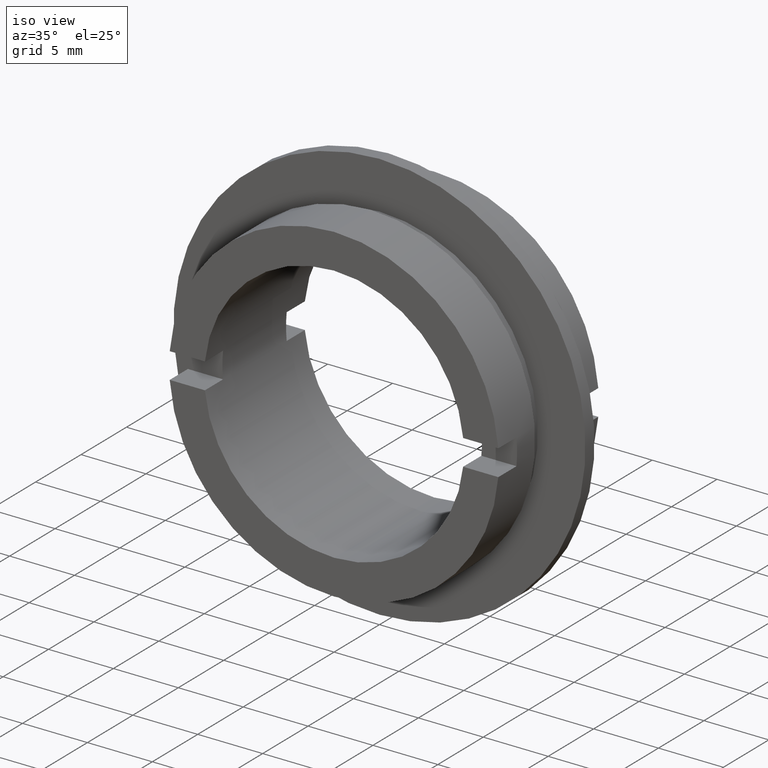
[diagram: clean part render]
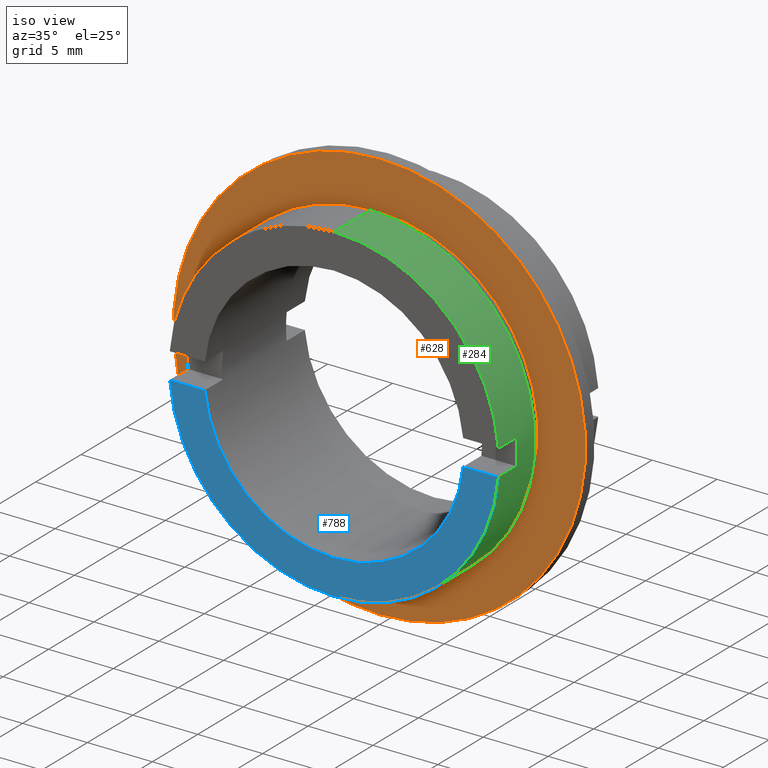
[diagram: same view with three faces highlighted in distinct colors, each labeled with its STEP entity id]
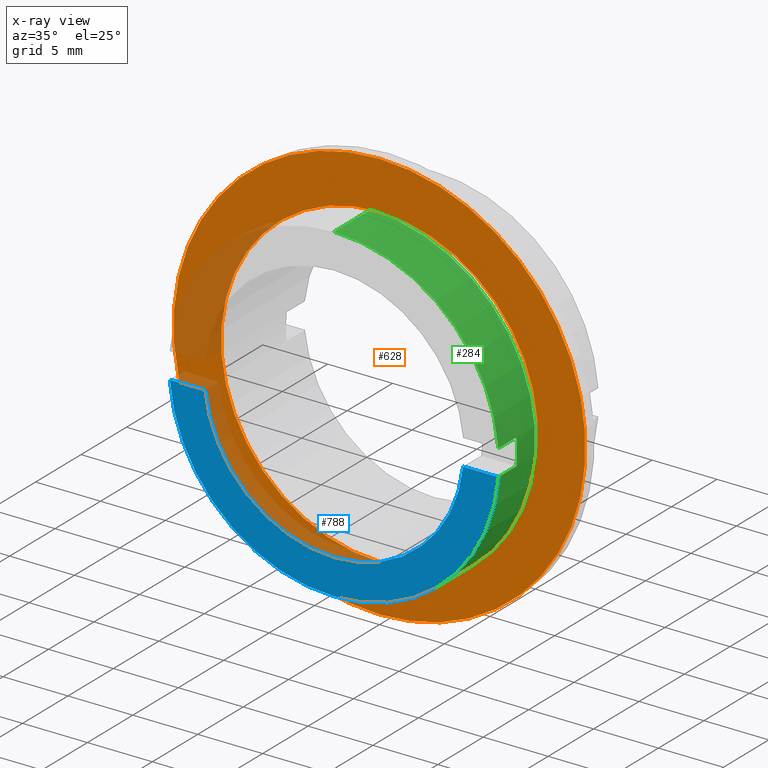
[diagram: x-ray of the same camera — body ghosted, the three highlighted faces saturated]
A machine part, iso view with three faces highlighted in distinct colors.
The next image is the same camera in x-ray (body ghosted, the three faces saturated) — at least one of them is partly hidden behind the body in this view.
Their STEP definitions:

[orange] entity #628 — the highlighted planar face has unit normal (0, -1, 0).
#5 = CARTESIAN_POINT ( 'NONE',  ( 0.0000000000000000000, 5.000000000000000900, 15.87499999999999600 ) ) ;
#58 = DIRECTION ( 'NONE',  ( 0.0000000000000000000, -1.000000000000000000, 0.0000000000000000000 ) ) ;
#137 = DIRECTION ( 'NONE',  ( -0.0000000000000000000, 1.000000000000000000, -0.0000000000000000000 ) ) ;
#149 = CARTESIAN_POINT ( 'NONE',  ( 0.0000000000000000000, 5.000000000000000900, 0.0000000000000000000 ) ) ;
#230 = ORIENTED_EDGE ( 'NONE', *, *, #746, .F. ) ;
#244 = VERTEX_POINT ( 'NONE', #972 ) ;
#314 = AXIS2_PLACEMENT_3D ( 'NONE', #149, #1060, #511 ) ;
#318 = EDGE_CURVE ( 'NONE', #524, #913, #880, .T. ) ;
#320 = DIRECTION ( 'NONE',  ( 0.0000000000000000000, 0.0000000000000000000, 1.000000000000000000 ) ) ;
#333 = CARTESIAN_POINT ( 'NONE',  ( 0.0000000000000000000, 5.000000000000000900, 0.0000000000000000000 ) ) ;
#336 = CARTESIAN_POINT ( 'NONE',  ( 0.0000000000000000000, 5.000000000000000900, 12.19999999999999800 ) ) ;
#353 = DIRECTION ( 'NONE',  ( -0.0000000000000000000, 1.000000000000000000, -0.0000000000000000000 ) ) ;
#366 = FACE_BOUND ( 'NONE', #993, .T. ) ;
#389 = AXIS2_PLACEMENT_3D ( 'NONE', #333, #501, #417 ) ;
#394 = AXIS2_PLACEMENT_3D ( 'NONE', #405, #137, #320 ) ;
#405 = CARTESIAN_POINT ( 'NONE',  ( 0.0000000000000000000, 5.000000000000000900, 0.0000000000000000000 ) ) ;
#417 = DIRECTION ( 'NONE',  ( 0.0000000000000000000, 0.0000000000000000000, 1.000000000000000000 ) ) ;
#464 = DIRECTION ( 'NONE',  ( 0.0000000000000000000, -0.0000000000000000000, -1.000000000000000000 ) ) ;
#498 = CARTESIAN_POINT ( 'NONE',  ( -15.87499999999999600, 5.000000000000000000, 0.0000000000000000000 ) ) ;
#501 = DIRECTION ( 'NONE',  ( -0.0000000000000000000, 1.000000000000000000, -0.0000000000000000000 ) ) ;
#511 = DIRECTION ( 'NONE',  ( 0.0000000000000000000, 0.0000000000000000000, 1.000000000000000000 ) ) ;
#524 = VERTEX_POINT ( 'NONE', #336 ) ;
#532 = DIRECTION ( 'NONE',  ( 0.0000000000000000000, 0.0000000000000000000, 1.000000000000000000 ) ) ;
#567 = EDGE_CURVE ( 'NONE', #913, #524, #873, .T. ) ;
#601 = VERTEX_POINT ( 'NONE', #5 ) ;
#628 = ADVANCED_FACE ( 'NONE', ( #366, #892 ), #851, .T. ) ;
#643 = CIRCLE ( 'NONE', #999, 15.87499999999999600 ) ;
#689 = AXIS2_PLACEMENT_3D ( 'NONE', #498, #58, #464 ) ;
#704 = ORIENTED_EDGE ( 'NONE', *, *, #567, .T. ) ;
#731 = ORIENTED_EDGE ( 'NONE', *, *, #1044, .F. ) ;
#746 = EDGE_CURVE ( 'NONE', #601, #244, #643, .T. ) ;
#849 = CARTESIAN_POINT ( 'NONE',  ( 1.494069094959770900E-015, 5.000000000000000900, -12.19999999999999900 ) ) ;
#851 = PLANE ( 'NONE',  #689 ) ;
#873 = CIRCLE ( 'NONE', #314, 12.19999999999999800 ) ;
#880 = CIRCLE ( 'NONE', #394, 12.19999999999999800 ) ;
#892 = FACE_OUTER_BOUND ( 'NONE', #1004, .T. ) ;
#913 = VERTEX_POINT ( 'NONE', #849 ) ;
#972 = CARTESIAN_POINT ( 'NONE',  ( 1.944126793646422800E-015, 5.000000000000000900, -15.87499999999999600 ) ) ;
#993 = EDGE_LOOP ( 'NONE', ( #1087, #704 ) ) ;
#999 = AXIS2_PLACEMENT_3D ( 'NONE', #1124, #353, #532 ) ;
#1001 = CIRCLE ( 'NONE', #389, 15.87499999999999600 ) ;
#1004 = EDGE_LOOP ( 'NONE', ( #230, #731 ) ) ;
#1044 = EDGE_CURVE ( 'NONE', #244, #601, #1001, .T. ) ;
#1060 = DIRECTION ( 'NONE',  ( -0.0000000000000000000, 1.000000000000000000, -0.0000000000000000000 ) ) ;
#1087 = ORIENTED_EDGE ( 'NONE', *, *, #318, .T. ) ;
#1124 = CARTESIAN_POINT ( 'NONE',  ( 0.0000000000000000000, 5.000000000000000900, 0.0000000000000000000 ) ) ;

[blue] entity #788 — the highlighted planar face has unit normal (0, -1, 0).
#29 = VERTEX_POINT ( 'NONE', #819 ) ;
#41 = EDGE_CURVE ( 'NONE', #730, #29, #560, .T. ) ;
#120 = PLANE ( 'NONE',  #223 ) ;
#171 = CARTESIAN_POINT ( 'NONE',  ( -12.69999999999999800, 0.0000000000000000000, -1.000000000000000000 ) ) ;
#183 = CARTESIAN_POINT ( 'NONE',  ( -12.66056870760551300, 0.0000000000000000000, -1.000000000000000000 ) ) ;
#193 = CARTESIAN_POINT ( 'NONE',  ( 0.0000000000000000000, 0.0000000000000000000, 0.0000000000000000000 ) ) ;
#218 = DIRECTION ( 'NONE',  ( 0.0000000000000000000, 0.0000000000000000000, 1.000000000000000000 ) ) ;
#219 = ORIENTED_EDGE ( 'NONE', *, *, #41, .T. ) ;
#223 = AXIS2_PLACEMENT_3D ( 'NONE', #304, #431, #890 ) ;
#239 = FACE_OUTER_BOUND ( 'NONE', #1073, .T. ) ;
#304 = CARTESIAN_POINT ( 'NONE',  ( -12.69999999999999800, 0.0000000000000000000, 0.0000000000000000000 ) ) ;
#306 = VECTOR ( 'NONE', #724, 1000.000000000000000 ) ;
#340 = CARTESIAN_POINT ( 'NONE',  ( 12.66056870760551300, 0.0000000000000000000, -1.000000000000000000 ) ) ;
#344 = VERTEX_POINT ( 'NONE', #660 ) ;
#391 = DIRECTION ( 'NONE',  ( -0.0000000000000000000, 1.000000000000000000, -0.0000000000000000000 ) ) ;
#411 = ORIENTED_EDGE ( 'NONE', *, *, #696, .F. ) ;
#414 = AXIS2_PLACEMENT_3D ( 'NONE', #193, #507, #540 ) ;
#428 = CARTESIAN_POINT ( 'NONE',  ( 1.224646799147352900E-015, 0.0000000000000000000, -9.999999999999996400 ) ) ;
#431 = DIRECTION ( 'NONE',  ( 0.0000000000000000000, -1.000000000000000000, 0.0000000000000000000 ) ) ;
#433 = CARTESIAN_POINT ( 'NONE',  ( 0.0000000000000000000, 0.0000000000000000000, 0.0000000000000000000 ) ) ;
#439 = VERTEX_POINT ( 'NONE', #183 ) ;
#449 = AXIS2_PLACEMENT_3D ( 'NONE', #985, #391, #885 ) ;
#451 = VERTEX_POINT ( 'NONE', #1145 ) ;
#469 = EDGE_CURVE ( 'NONE', #451, #730, #697, .T. ) ;
#489 = CARTESIAN_POINT ( 'NONE',  ( -12.69999999999999800, 0.0000000000000000000, -1.000000000000000000 ) ) ;
#507 = DIRECTION ( 'NONE',  ( -0.0000000000000000000, 1.000000000000000000, -0.0000000000000000000 ) ) ;
#538 = ORIENTED_EDGE ( 'NONE', *, *, #1120, .F. ) ;
#540 = DIRECTION ( 'NONE',  ( 0.0000000000000000000, 0.0000000000000000000, 1.000000000000000000 ) ) ;
#560 = CIRCLE ( 'NONE', #889, 9.999999999999996400 ) ;
#568 = DIRECTION ( 'NONE',  ( -0.0000000000000000000, 1.000000000000000000, -0.0000000000000000000 ) ) ;
#579 = LINE ( 'NONE', #171, #306 ) ;
#586 = EDGE_CURVE ( 'NONE', #344, #439, #863, .T. ) ;
#599 = ORIENTED_EDGE ( 'NONE', *, *, #586, .F. ) ;
#613 = CIRCLE ( 'NONE', #414, 12.69999999999999800 ) ;
#625 = DIRECTION ( 'NONE',  ( 1.000000000000000000, 0.0000000000000000000, 0.0000000000000000000 ) ) ;
#633 = ORIENTED_EDGE ( 'NONE', *, *, #469, .T. ) ;
#657 = VERTEX_POINT ( 'NONE', #340 ) ;
#660 = CARTESIAN_POINT ( 'NONE',  ( 1.555301434917138200E-015, 0.0000000000000000000, -12.69999999999999800 ) ) ;
#696 = EDGE_CURVE ( 'NONE', #657, #344, #613, .T. ) ;
#697 = CIRCLE ( 'NONE', #449, 9.999999999999996400 ) ;
#724 = DIRECTION ( 'NONE',  ( 1.000000000000000000, 0.0000000000000000000, 0.0000000000000000000 ) ) ;
#730 = VERTEX_POINT ( 'NONE', #428 ) ;
#788 = ADVANCED_FACE ( 'NONE', ( #239 ), #120, .T. ) ;
#819 = CARTESIAN_POINT ( 'NONE',  ( -9.949874371066195900, 0.0000000000000000000, -1.000000000000000000 ) ) ;
#863 = CIRCLE ( 'NONE', #905, 12.69999999999999800 ) ;
#885 = DIRECTION ( 'NONE',  ( 0.0000000000000000000, 0.0000000000000000000, 1.000000000000000000 ) ) ;
#889 = AXIS2_PLACEMENT_3D ( 'NONE', #1135, #568, #1097 ) ;
#890 = DIRECTION ( 'NONE',  ( 0.0000000000000000000, -0.0000000000000000000, -1.000000000000000000 ) ) ;
#898 = ORIENTED_EDGE ( 'NONE', *, *, #1013, .F. ) ;
#904 = LINE ( 'NONE', #489, #1046 ) ;
#905 = AXIS2_PLACEMENT_3D ( 'NONE', #433, #1025, #218 ) ;
#985 = CARTESIAN_POINT ( 'NONE',  ( 0.0000000000000000000, 0.0000000000000000000, 0.0000000000000000000 ) ) ;
#1013 = EDGE_CURVE ( 'NONE', #451, #657, #579, .T. ) ;
#1025 = DIRECTION ( 'NONE',  ( -0.0000000000000000000, 1.000000000000000000, -0.0000000000000000000 ) ) ;
#1046 = VECTOR ( 'NONE', #625, 1000.000000000000000 ) ;
#1073 = EDGE_LOOP ( 'NONE', ( #538, #599, #411, #898, #633, #219 ) ) ;
#1097 = DIRECTION ( 'NONE',  ( 0.0000000000000000000, 0.0000000000000000000, 1.000000000000000000 ) ) ;
#1120 = EDGE_CURVE ( 'NONE', #439, #29, #904, .T. ) ;
#1135 = CARTESIAN_POINT ( 'NONE',  ( 0.0000000000000000000, 0.0000000000000000000, 0.0000000000000000000 ) ) ;
#1145 = CARTESIAN_POINT ( 'NONE',  ( 9.949874371066195900, 0.0000000000000000000, -1.000000000000000000 ) ) ;

[green] entity #284 — the highlighted cylindrical surface (partial cylindrical patch) has radius 12.7 mm, axis along (-0, 1, -0).
#9 = LINE ( 'NONE', #62, #747 ) ;
#44 = CARTESIAN_POINT ( 'NONE',  ( 12.66056870760551200, 22.67749945107591400, -0.9999999999999943400 ) ) ;
#62 = CARTESIAN_POINT ( 'NONE',  ( 1.555301434917138200E-015, 22.67749945107591400, -12.69999999999999800 ) ) ;
#66 = EDGE_LOOP ( 'NONE', ( #525, #897, #237, #1117, #440, #125, #425, #750 ) ) ;
#68 = VERTEX_POINT ( 'NONE', #491 ) ;
#125 = ORIENTED_EDGE ( 'NONE', *, *, #806, .F. ) ;
#131 = CARTESIAN_POINT ( 'NONE',  ( 0.0000000000000000000, 22.67749945107591400, 12.69999999999999800 ) ) ;
#135 = AXIS2_PLACEMENT_3D ( 'NONE', #138, #804, #762 ) ;
#138 = CARTESIAN_POINT ( 'NONE',  ( 0.0000000000000000000, 22.67749945107591400, 0.0000000000000000000 ) ) ;
#192 = CIRCLE ( 'NONE', #499, 12.69999999999999800 ) ;
#193 = CARTESIAN_POINT ( 'NONE',  ( 0.0000000000000000000, 0.0000000000000000000, 0.0000000000000000000 ) ) ;
#225 = DIRECTION ( 'NONE',  ( -0.0000000000000000000, 1.000000000000000000, -0.0000000000000000000 ) ) ;
#237 = ORIENTED_EDGE ( 'NONE', *, *, #702, .F. ) ;
#238 = DIRECTION ( 'NONE',  ( 0.0000000000000000000, 0.0000000000000000000, 1.000000000000000000 ) ) ;
#252 = VECTOR ( 'NONE', #1017, 1000.000000000000000 ) ;
#257 = CARTESIAN_POINT ( 'NONE',  ( 12.66056870760551300, 1.999999999999998200, 1.000000000000000200 ) ) ;
#261 = LINE ( 'NONE', #131, #986 ) ;
#265 = CARTESIAN_POINT ( 'NONE',  ( 0.0000000000000000000, 4.000000000000000000, 12.69999999999999800 ) ) ;
#284 = ADVANCED_FACE ( 'NONE', ( #326 ), #396, .T. ) ;
#302 = LINE ( 'NONE', #725, #252 ) ;
#315 = DIRECTION ( 'NONE',  ( 0.0000000000000000000, 0.0000000000000000000, 1.000000000000000000 ) ) ;
#322 = CIRCLE ( 'NONE', #887, 12.69999999999999800 ) ;
#326 = FACE_OUTER_BOUND ( 'NONE', #66, .T. ) ;
#340 = CARTESIAN_POINT ( 'NONE',  ( 12.66056870760551300, 0.0000000000000000000, -1.000000000000000000 ) ) ;
#344 = VERTEX_POINT ( 'NONE', #660 ) ;
#388 = CARTESIAN_POINT ( 'NONE',  ( 1.555301434917138200E-015, 4.000000000000000000, -12.69999999999999800 ) ) ;
#396 = CYLINDRICAL_SURFACE ( 'NONE', #135, 12.69999999999999800 ) ;
#399 = CARTESIAN_POINT ( 'NONE',  ( 12.66056870760551300, 2.000000000000000000, -0.9999999999999995600 ) ) ;
#414 = AXIS2_PLACEMENT_3D ( 'NONE', #193, #507, #540 ) ;
#425 = ORIENTED_EDGE ( 'NONE', *, *, #832, .F. ) ;
#440 = ORIENTED_EDGE ( 'NONE', *, *, #651, .T. ) ;
#478 = VERTEX_POINT ( 'NONE', #388 ) ;
#491 = CARTESIAN_POINT ( 'NONE',  ( 0.0000000000000000000, 0.0000000000000000000, 12.69999999999999800 ) ) ;
#499 = AXIS2_PLACEMENT_3D ( 'NONE', #929, #906, #238 ) ;
#505 = VECTOR ( 'NONE', #225, 1000.000000000000000 ) ;
#507 = DIRECTION ( 'NONE',  ( -0.0000000000000000000, 1.000000000000000000, -0.0000000000000000000 ) ) ;
#525 = ORIENTED_EDGE ( 'NONE', *, *, #696, .T. ) ;
#526 = DIRECTION ( 'NONE',  ( -0.0000000000000000000, -1.000000000000000000, -0.0000000000000000000 ) ) ;
#540 = DIRECTION ( 'NONE',  ( 0.0000000000000000000, 0.0000000000000000000, 1.000000000000000000 ) ) ;
#550 = CIRCLE ( 'NONE', #617, 12.69999999999999800 ) ;
#577 = DIRECTION ( 'NONE',  ( -0.0000000000000000000, 1.000000000000000000, -0.0000000000000000000 ) ) ;
#613 = CIRCLE ( 'NONE', #414, 12.69999999999999800 ) ;
#617 = AXIS2_PLACEMENT_3D ( 'NONE', #869, #577, #315 ) ;
#651 = EDGE_CURVE ( 'NONE', #68, #1116, #550, .T. ) ;
#657 = VERTEX_POINT ( 'NONE', #340 ) ;
#660 = CARTESIAN_POINT ( 'NONE',  ( 1.555301434917138200E-015, 0.0000000000000000000, -12.69999999999999800 ) ) ;
#673 = EDGE_CURVE ( 'NONE', #344, #478, #9, .T. ) ;
#696 = EDGE_CURVE ( 'NONE', #657, #344, #613, .T. ) ;
#702 = EDGE_CURVE ( 'NONE', #1036, #478, #192, .T. ) ;
#722 = EDGE_CURVE ( 'NONE', #68, #1036, #261, .T. ) ;
#725 = CARTESIAN_POINT ( 'NONE',  ( 12.66056870760551300, 22.67749945107591400, 1.000000000000003800 ) ) ;
#747 = VECTOR ( 'NONE', #770, 1000.000000000000000 ) ;
#750 = ORIENTED_EDGE ( 'NONE', *, *, #792, .F. ) ;
#758 = LINE ( 'NONE', #44, #505 ) ;
#762 = DIRECTION ( 'NONE',  ( 0.0000000000000000000, 0.0000000000000000000, 1.000000000000000000 ) ) ;
#770 = DIRECTION ( 'NONE',  ( -0.0000000000000000000, 1.000000000000000000, -0.0000000000000000000 ) ) ;
#792 = EDGE_CURVE ( 'NONE', #657, #797, #758, .T. ) ;
#794 = CARTESIAN_POINT ( 'NONE',  ( 12.66056870760551300, 0.0000000000000000000, 1.000000000000000000 ) ) ;
#797 = VERTEX_POINT ( 'NONE', #399 ) ;
#804 = DIRECTION ( 'NONE',  ( -0.0000000000000000000, 1.000000000000000000, -0.0000000000000000000 ) ) ;
#806 = EDGE_CURVE ( 'NONE', #950, #1116, #302, .T. ) ;
#832 = EDGE_CURVE ( 'NONE', #797, #950, #322, .T. ) ;
#847 = DIRECTION ( 'NONE',  ( -0.0000000000000000000, 1.000000000000000000, -0.0000000000000000000 ) ) ;
#869 = CARTESIAN_POINT ( 'NONE',  ( 0.0000000000000000000, 0.0000000000000000000, 0.0000000000000000000 ) ) ;
#887 = AXIS2_PLACEMENT_3D ( 'NONE', #1032, #526, #1121 ) ;
#897 = ORIENTED_EDGE ( 'NONE', *, *, #673, .T. ) ;
#906 = DIRECTION ( 'NONE',  ( -0.0000000000000000000, 1.000000000000000000, -0.0000000000000000000 ) ) ;
#929 = CARTESIAN_POINT ( 'NONE',  ( 0.0000000000000000000, 4.000000000000000000, 0.0000000000000000000 ) ) ;
#950 = VERTEX_POINT ( 'NONE', #257 ) ;
#986 = VECTOR ( 'NONE', #847, 1000.000000000000000 ) ;
#1017 = DIRECTION ( 'NONE',  ( 0.0000000000000000000, -1.000000000000000000, 0.0000000000000000000 ) ) ;
#1032 = CARTESIAN_POINT ( 'NONE',  ( 0.0000000000000000000, 1.999999999999998200, 0.0000000000000000000 ) ) ;
#1036 = VERTEX_POINT ( 'NONE', #265 ) ;
#1116 = VERTEX_POINT ( 'NONE', #794 ) ;
#1117 = ORIENTED_EDGE ( 'NONE', *, *, #722, .F. ) ;
#1121 = DIRECTION ( 'NONE',  ( -6.217248937900876600E-015, 0.0000000000000000000, 1.000000000000000000 ) ) ;